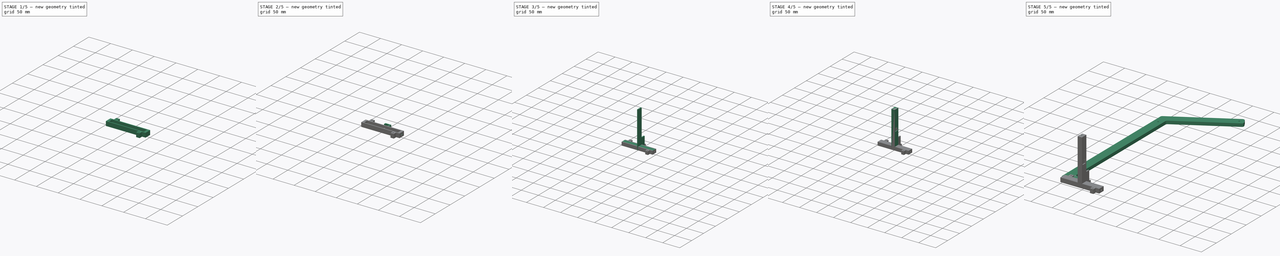
[diagram: build sequence overview — one tinted view per stage of 5, left to right]
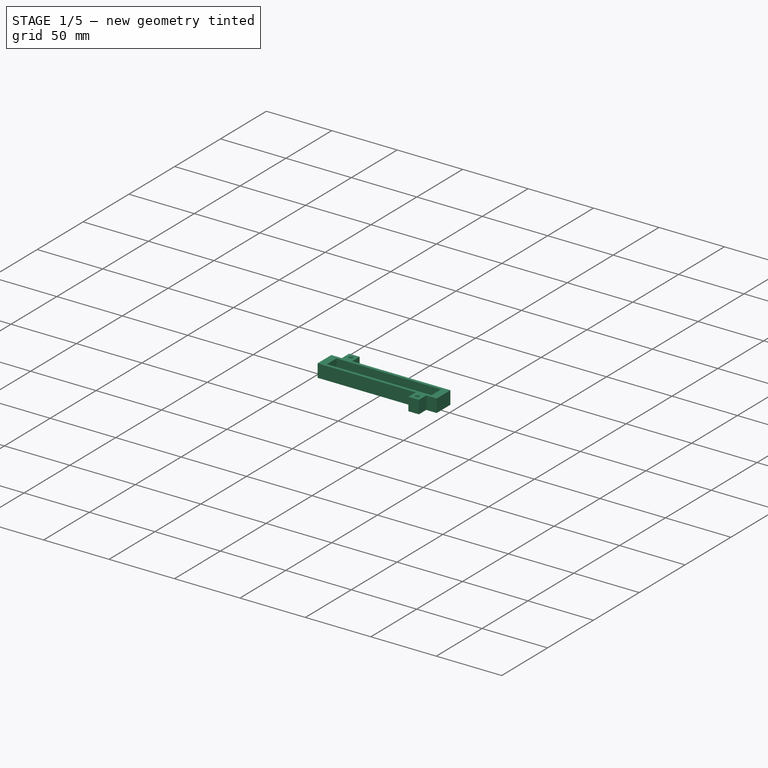
[diagram: stage 1 of 5 — iso view after this stage's code; geometry added in this stage tinted green]
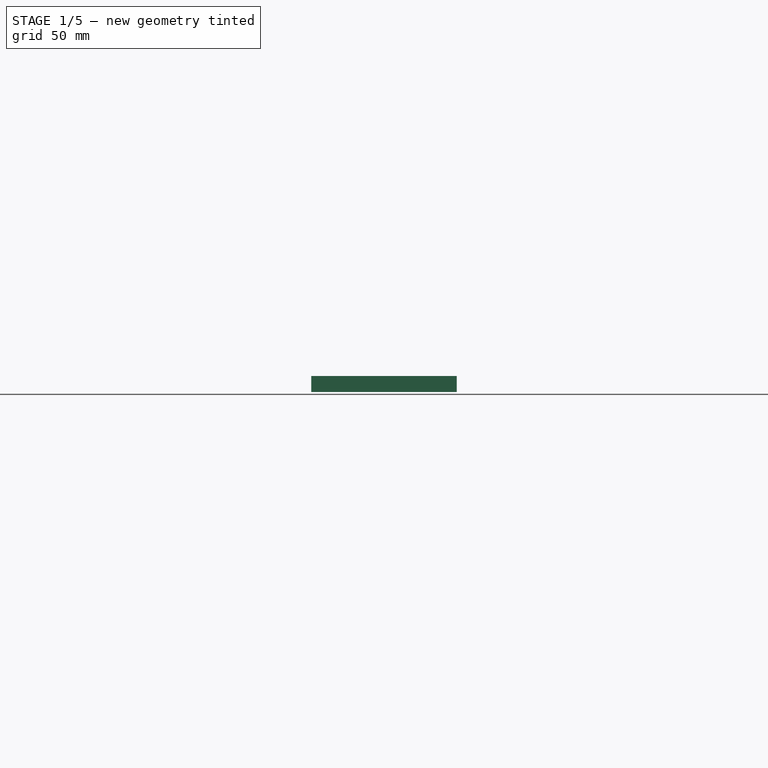
[diagram: stage 1 of 5 — front view after this stage's code; geometry added in this stage tinted green]
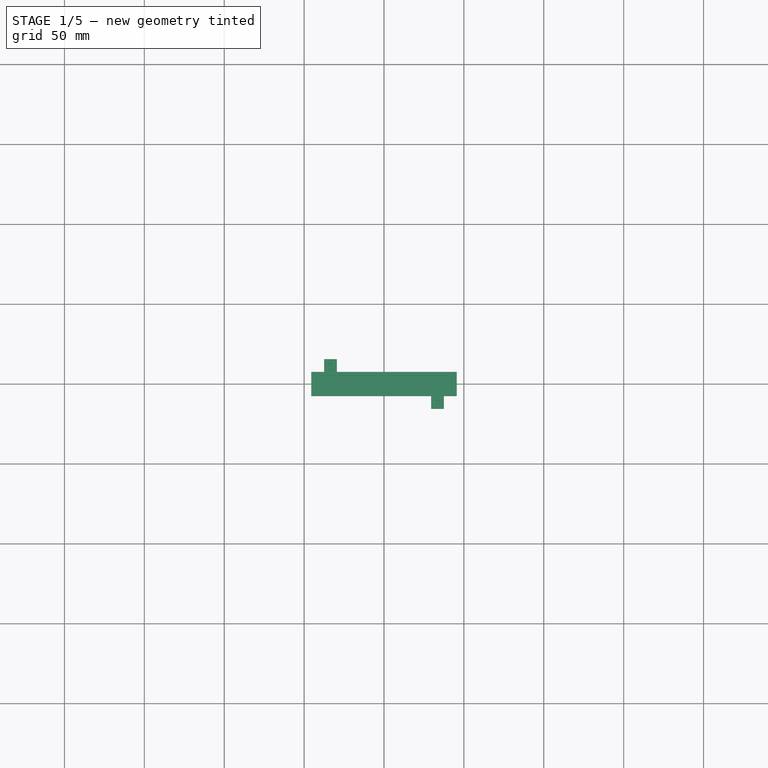
[diagram: stage 1 of 5 — top view after this stage's code; geometry added in this stage tinted green]
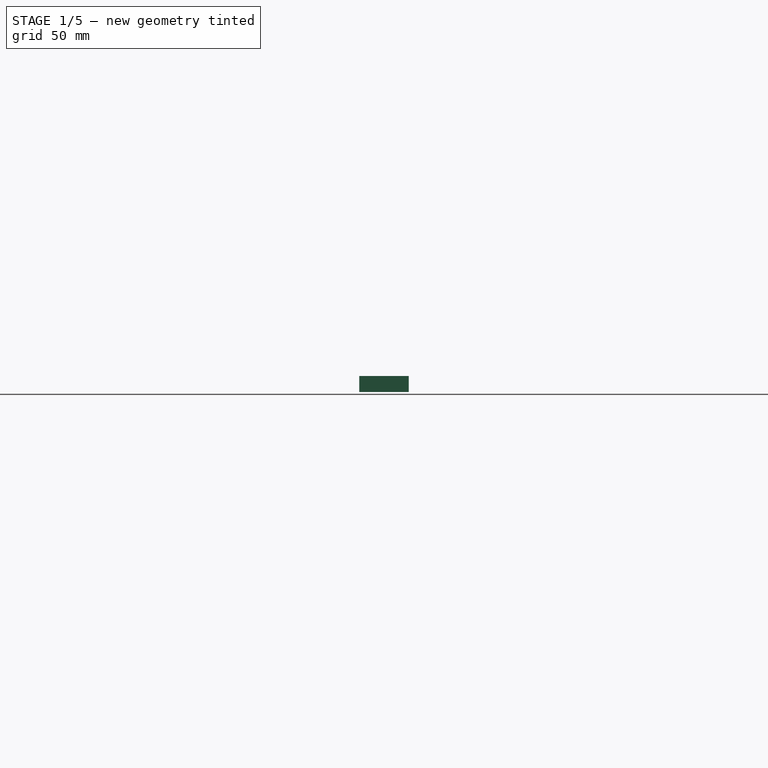
[diagram: stage 1 of 5 — right view after this stage's code; geometry added in this stage tinted green]
FCSTD DOCUMENT  (FreeCAD 0.21R33668 +26 (Git))
Label: cam_arm
License: All rights reserved
LicenseURL: https://en.wikipedia.org/wiki/All_rights_reserved
objects: Sketcher::SketchObject×22, PartDesign::Pocket×14, PartDesign::Pad×8, PartDesign::Body×7, App::Part×7, PartDesign::Fillet×1
note: 75 computed .brp shape members not serialized (recipe doc carries the construction recipe); baked Part::Feature solids carry a one-line shape summary decoded from their .brp

FEATURE [PartDesign::Body] Body005
  Group = -> [Sketch013,Pad005,Sketch014,Pad006]
  Origin = -> Origin010
  Tip = -> Pad006
FEATURE [App::Part] Part004  label="arm_proppers"
  Group = -> [Body005]
  Origin = -> Origin009
FEATURE [Sketcher::SketchObject] Sketch015
  FullyConstrained = true
  MapMode = 5
  Support = -> [XY_Plane012]
  sketch-geometry (12):
    g0: LineSegment StartX=45.5 StartY=7.5 StartZ=0 EndX=45.5 EndY=-7.5 EndZ=0
    g1: LineSegment StartX=45.5 StartY=-7.5 StartZ=0 EndX=37.5 EndY=-7.5 EndZ=0
    g2: LineSegment StartX=37.5 StartY=-7.5 StartZ=0 EndX=37.5 EndY=-15.5 EndZ=0
    g3: LineSegment StartX=37.5 StartY=-15.5 StartZ=0 EndX=29.5 EndY=-15.5 EndZ=0
    g4: LineSegment StartX=29.5 StartY=-15.5 StartZ=0 EndX=29.5 EndY=-7.5 EndZ=0
    g5: LineSegment StartX=29.5 StartY=-7.5 StartZ=0 EndX=-45.5 EndY=-7.5 EndZ=0
    g6: LineSegment StartX=-45.5 StartY=-7.5 StartZ=0 EndX=-45.5 EndY=7.5 EndZ=0
    g7: LineSegment StartX=-45.5 StartY=7.5 StartZ=0 EndX=-37.5 EndY=7.5 EndZ=0
    g8: LineSegment StartX=-37.5 StartY=7.5 StartZ=0 EndX=-37.5 EndY=15.5 EndZ=0
    g9: LineSegment StartX=-37.5 StartY=15.5 StartZ=0 EndX=-29.5 EndY=15.5 EndZ=0
    g10: LineSegment StartX=-29.5 StartY=15.5 StartZ=0 EndX=-29.5 EndY=7.5 EndZ=0
    g11: LineSegment StartX=-29.5 StartY=7.5 StartZ=0 EndX=45.5 EndY=7.5 EndZ=0
  constraints (35):
    c: Vertical(g0)
    c: Coincident(g0,g1)
    c: Horizontal(g1)
    c: Coincident(g1,g2)
    c: Vertical(g2)
    c: Coincident(g2,g3)
    c: Horizontal(g3)
    c: Coincident(g3,g4)
    c: Vertical(g4)
    c: Coincident(g4,g5)
    c: Horizontal(g5)
    c: Coincident(g5,g6)
    c: Vertical(g6)
    c: Coincident(g6,g7)
    c: Horizontal(g7)
    c: Coincident(g7,g8)
    c: Vertical(g8)
    c: Coincident(g8,g9)
    c: Horizontal(g9)
    c: Coincident(g9,g10)
    c: Vertical(g10)
    c: Coincident(g10,g11)
    c: Coincident(g11,g0)
    c: Horizontal(g11)
    c: DistanceX(g7,g7) = 8
    c: DistanceY(g0,g0) = 15
    c: Equal(g0,g6)
    c: DistanceY(g10,g10) = 8
    c: Equal(g10,g8)
    c: Equal(g10,g4)
    c: DistanceX(g9,g9) = 8
    c: DistanceX(g3,g3) = 8
    c: DistanceX(g5,g5) = 75
    c: DistanceX(g1,g1) = 8
    c: Symmetric(g0,g6,g-1)
FEATURE [PartDesign::Pad] Pad007
  Direction = (0,0,1)
  Length = 10
  Length2 = 10
  Profile = -> Sketch015
  ReferenceAxis = -> Sketch015 [N_Axis]
  Type = 0
FEATURE [Sketcher::SketchObject] Sketch016
  ExternalGeometry = -> [Pad007]
  FullyConstrained = true
  MapMode = 5
  Placement = pos=(0,0,10) rot=(0,0,1;0rad)
  Support = -> [Pad007]
  sketch-geometry (11):
    g0: Circle CenterX=-33.5 CenterY=11.5 CenterZ=0 NormalX=0 NormalY=0 NormalZ=1 AngleXU=0 Radius=1.5
    g1: Circle CenterX=33.5 CenterY=-11.5 CenterZ=0 NormalX=0 NormalY=0 NormalZ=1 AngleXU=0 Radius=1.5
    g2: LineSegment StartX=-33.5 StartY=11.5 StartZ=0 EndX=-29.5 EndY=11.5 EndZ=0
    g3: LineSegment StartX=-33.5 StartY=11.5 StartZ=0 EndX=-33.5 EndY=15.5 EndZ=0
    g4: LineSegment StartX=33.5 StartY=-11.5 StartZ=0 EndX=29.5 EndY=-11.5 EndZ=0
    g5: LineSegment StartX=33.5 StartY=-11.5 StartZ=0 EndX=33.5 EndY=-15.5 EndZ=0
    g6: LineSegment StartX=-40 StartY=-5.25 StartZ=0 EndX=-40 EndY=5.25 EndZ=0
    g7: LineSegment StartX=-40 StartY=5.25 StartZ=0 EndX=40 EndY=5.25 EndZ=0
    g8: LineSegment StartX=40 StartY=5.25 StartZ=0 EndX=40 EndY=-5.25 EndZ=0
    g9: LineSegment StartX=40 StartY=-5.25 StartZ=0 EndX=-40 EndY=-5.25 EndZ=0
    g10: GeomPoint X=0 Y=0 Z=0
  constraints (30):
    c: Diameter(g0) = 3
    c: Diameter(g1) = 3
    c: Coincident(g2,g0)
    c: PointOnObject(g2,g-4)
    c: Horizontal(g2)
    c: Coincident(g3,g0)
    c: PointOnObject(g3,g-3)
    c: Vertical(g3)
    c: Equal(g2,g3)
    c: DistanceY(g3,g3) = 4
    c: Coincident(g4,g1)
    c: PointOnObject(g4,g-5)
    c: Coincident(g5,g1)
    c: PointOnObject(g5,g-6)
    c: Vertical(g5)
    c: Horizontal(g4)
    c: Equal(g5,g4)
    c: DistanceX(g4,g4) = 4
    c: Coincident(g6,g7)
    c: Coincident(g7,g8)
    c: Coincident(g8,g9)
    c: Coincident(g9,g6)
    c: Horizontal(g7)
    c: Horizontal(g9)
    c: Vertical(g6)
    c: Vertical(g8)
    c: Symmetric(g7,g6,g10)
    c: Coincident(g10,g-1)
    c: DistanceX(g9,g9) = 80
    c: DistanceY(g8,g8) = 10.5
FEATURE [PartDesign::Pocket] Pocket008
  BaseFeature = -> Pad007
  Direction = (0,0,-1)
  Length = 7
  Length2 = 5
  Profile = -> Sketch016
  ReferenceAxis = -> Sketch016 [N_Axis]
  Type = 0
FEATURE [Sketcher::SketchObject] Sketch017
  FullyConstrained = true
  MapMode = 5
  Placement = pos=(0,0,3) rot=(0,0,1;0rad)
  Support = -> [Pocket008]
  sketch-geometry (5):
    g0: LineSegment StartX=-4.75 StartY=4.75 StartZ=0 EndX=-4.75 EndY=-4.75 EndZ=0
    g1: LineSegment StartX=-4.75 StartY=-4.75 StartZ=0 EndX=4.75 EndY=-4.75 EndZ=0
    g2: LineSegment StartX=4.75 StartY=-4.75 StartZ=0 EndX=4.75 EndY=4.75 EndZ=0
    g3: LineSegment StartX=4.75 StartY=4.75 StartZ=0 EndX=-4.75 EndY=4.75 EndZ=0
    g4: GeomPoint X=0 Y=0 Z=0
  constraints (12):
    c: Coincident(g0,g1)
    c: Coincident(g1,g2)
    c: Coincident(g2,g3)
    c: Coincident(g3,g0)
    c: Horizontal(g1)
    c: Horizontal(g3)
    c: Vertical(g0)
    c: Vertical(g2)
    c: Symmetric(g1,g0,g4)
    c: Coincident(g4,g-1)
    c: Equal(g2,g3)
    c: DistanceX(g3,g3) = 9.5
FEATURE [PartDesign::Pocket] Pocket009
  BaseFeature = -> Pocket008
  Direction = (0,0,-1)
  Length = 2
  Length2 = 5
  Profile = -> Sketch017
  ReferenceAxis = -> Sketch017 [N_Axis]
  Type = 0
FEATURE [PartDesign::Body] Body006
  Group = -> [Sketch015,Pad007,Sketch016,Pocket008,Sketch017,Pocket009,Sketch018,Pocket010,Sketch019,Pocket011,Sketch020,Pocket012]
  Origin = -> Origin012
  Tip = -> Pocket012
FEATURE [App::Part] Part005  label="cam_enclosure_front"
  Group = -> [Body006]
  Origin = -> Origin011
FEATURE [Sketcher::SketchObject] Sketch021
  FullyConstrained = true
  MapMode = 5
  Support = -> [XY_Plane014]
  sketch-geometry (12):
    g0: LineSegment StartX=45.5 StartY=7.5 StartZ=0 EndX=45.5 EndY=-7.5 EndZ=0
    g1: LineSegment StartX=45.5 StartY=-7.5 StartZ=0 EndX=37.5 EndY=-7.5 EndZ=0
    g2: LineSegment StartX=37.5 StartY=-7.5 StartZ=0 EndX=37.5 EndY=-15.5 EndZ=0
    g3: LineSegment StartX=37.5 StartY=-15.5 StartZ=0 EndX=29.5 EndY=-15.5 EndZ=0
    g4: LineSegment StartX=29.5 StartY=-15.5 StartZ=0 EndX=29.5 EndY=-7.5 EndZ=0
    g5: LineSegment StartX=29.5 StartY=-7.5 StartZ=0 EndX=-45.5 EndY=-7.5 EndZ=0
    g6: LineSegment StartX=-45.5 StartY=-7.5 StartZ=0 EndX=-45.5 EndY=7.5 EndZ=0
    g7: LineSegment StartX=-45.5 StartY=7.5 StartZ=0 EndX=-37.5 EndY=7.5 EndZ=0
    g8: LineSegment StartX=-37.5 StartY=7.5 StartZ=0 EndX=-37.5 EndY=15.5 EndZ=0
    g9: LineSegment StartX=-37.5 StartY=15.5 StartZ=0 EndX=-29.5 EndY=15.5 EndZ=0
    g10: LineSegment StartX=-29.5 StartY=15.5 StartZ=0 EndX=-29.5 EndY=7.5 EndZ=0
    g11: LineSegment StartX=-29.5 StartY=7.5 StartZ=0 EndX=45.5 EndY=7.5 EndZ=0
  constraints (35):
    c: Vertical(g0)
    c: Coincident(g0,g1)
    c: Horizontal(g1)
    c: Coincident(g1,g2)
    c: Vertical(g2)
    c: Coincident(g2,g3)
    c: Horizontal(g3)
    c: Coincident(g3,g4)
    c: Vertical(g4)
    c: Coincident(g4,g5)
    c: Horizontal(g5)
    c: Coincident(g5,g6)
    c: Vertical(g6)
    c: Coincident(g6,g7)
    c: Horizontal(g7)
    c: Coincident(g7,g8)
    c: Vertical(g8)
    c: Coincident(g8,g9)
    c: Horizontal(g9)
    c: Coincident(g9,g10)
    c: Vertical(g10)
    c: Coincident(g10,g11)
    c: Coincident(g11,g0)
    c: Horizontal(g11)
    c: DistanceX(g7,g7) = 8
    c: DistanceX(g9,g9) = 8
    c: DistanceX(g3,g3) = 8
    c: DistanceX(g1,g1) = 8
    c: DistanceY(g10,g10) = 8
    c: DistanceY(g2,g2) = 8
    c: DistanceY(g0,g0) = 15
    c: Equal(g0,g6)
    c: Equal(g10,g8)
    c: DistanceX(g5,g5) = 75
    c: Symmetric(g0,g6,g-1)
FEATURE [PartDesign::Pad] Pad008
  Direction = (0,0,1)
  Length = 3
  Length2 = 10
  Profile = -> Sketch021
  ReferenceAxis = -> Sketch021 [N_Axis]
  Type = 0
FEATURE [Sketcher::SketchObject] Sketch022
  ExternalGeometry = -> [Pad008]
  FullyConstrained = true
  MapMode = 5
  Placement = pos=(0,0,3) rot=(0,0,1;0rad)
  Support = -> [Pad008]
  sketch-geometry (26):
    g0: Circle CenterX=-33.5 CenterY=11.5 CenterZ=0 NormalX=0 NormalY=0 NormalZ=1 AngleXU=0 Radius=1.65
    g1: Circle CenterX=33.5 CenterY=-11.5 CenterZ=0 NormalX=0 NormalY=0 NormalZ=1 AngleXU=0 Radius=1.65
    g2: LineSegment StartX=-33.5 StartY=11.5 StartZ=0 EndX=-29.5 EndY=11.5 EndZ=0
    g3: LineSegment StartX=-33.5 StartY=15.5 StartZ=0 EndX=-33.5 EndY=11.5 EndZ=0
    g4: LineSegment StartX=33.5 StartY=-11.5 StartZ=0 EndX=33.5 EndY=-15.5 EndZ=0
    g5: LineSegment StartX=33.5 StartY=-11.5 StartZ=0 EndX=37.5 EndY=-11.5 EndZ=0
    g6: LineSegment StartX=-30.5 StartY=4.5 StartZ=0 EndX=-30.5 EndY=2.5 EndZ=0
    g7: LineSegment StartX=-30.5 StartY=2.5 StartZ=0 EndX=-5.5 EndY=2.5 EndZ=0
    g8: LineSegment StartX=-5.5 StartY=2.5 StartZ=0 EndX=-5.5 EndY=4.5 EndZ=0
    g9: LineSegment StartX=-5.5 StartY=4.5 StartZ=0 EndX=-30.5 EndY=4.5 EndZ=0
    g10: GeomPoint X=-18 Y=3.5 Z=0
    g11: LineSegment StartX=-30.5 StartY=-2.5 StartZ=0 EndX=-30.5 EndY=-4.5 EndZ=0
    g12: LineSegment StartX=-30.5 StartY=-4.5 StartZ=0 EndX=-5.5 EndY=-4.5 EndZ=0
    g13: LineSegment StartX=-5.5 StartY=-4.5 StartZ=0 EndX=-5.5 EndY=-2.5 EndZ=0
    g14: LineSegment StartX=-5.5 StartY=-2.5 StartZ=0 EndX=-30.5 EndY=-2.5 EndZ=0
    g15: GeomPoint X=-18 Y=-3.5 Z=0
    g16: LineSegment StartX=5.5 StartY=-2.5 StartZ=0 EndX=5.5 EndY=-4.5 EndZ=0
    g17: LineSegment StartX=5.5 StartY=-4.5 StartZ=0 EndX=30.5 EndY=-4.5 EndZ=0
    g18: LineSegment StartX=30.5 StartY=-4.5 StartZ=0 EndX=30.5 EndY=-2.5 EndZ=0
    g19: LineSegment StartX=30.5 StartY=-2.5 StartZ=0 EndX=5.5 EndY=-2.5 EndZ=0
    g20: GeomPoint X=18 Y=-3.5 Z=0
    g21: LineSegment StartX=5.5 StartY=4.5 StartZ=0 EndX=5.5 EndY=2.5 EndZ=0
    g22: LineSegment StartX=5.5 StartY=2.5 StartZ=0 EndX=30.5 EndY=2.5 EndZ=0
    g23: LineSegment StartX=30.5 StartY=2.5 StartZ=0 EndX=30.5 EndY=4.5 EndZ=0
    g24: LineSegment StartX=30.5 StartY=4.5 StartZ=0 EndX=5.5 EndY=4.5 EndZ=0
    g25: GeomPoint X=18 Y=3.5 Z=0
  constraints (70):
    c: Diameter(g1) = 3.3
    c: Diameter(g0) = 3.3
    c: Coincident(g2,g0)
    c: PointOnObject(g2,g-3)
    c: Horizontal(g2)
    c: PointOnObject(g3,g-4)
    c: Coincident(g3,g0)
    c: Coincident(g4,g1)
    c: PointOnObject(g4,g-5)
    c: Coincident(g5,g1)
    c: PointOnObject(g5,g-6)
    c: Horizontal(g5)
    c: Vertical(g4)
    c: Vertical(g3)
    c: Equal(g3,g2)
    c: Equal(g5,g4)
    c: DistanceX(g5,g5) = 4
    c: DistanceX(g2,g2) = 4
    c: Coincident(g6,g7)
    c: Coincident(g7,g8)
    c: Coincident(g8,g9)
    c: Coincident(g9,g6)
    c: Horizontal(g7)
    c: Horizontal(g9)
    c: Vertical(g6)
    c: Vertical(g8)
    c: Symmetric(g7,g6,g10)
    c: Coincident(g11,g12)
    c: Coincident(g12,g13)
    c: Coincident(g13,g14)
    c: Coincident(g14,g11)
    c: Horizontal(g12)
    c: Horizontal(g14)
    c: Vertical(g11)
    c: Vertical(g13)
    c: Symmetric(g12,g11,g15)
    c: Coincident(g16,g17)
    c: Coincident(g17,g18)
    c: Coincident(g18,g19)
    c: Coincident(g19,g16)
    c: Horizontal(g17)
    c: Horizontal(g19)
    c: Vertical(g16)
    c: Vertical(g18)
    c: Symmetric(g17,g16,g20)
    c: Coincident(g21,g22)
    c: Coincident(g22,g23)
    c: Coincident(g23,g24)
    c: Coincident(g24,g21)
    c: Horizontal(g22)
    c: Horizontal(g24)
    c: Vertical(g21)
    c: Vertical(g23)
    c: Symmetric(g22,g21,g25)
    c: DistanceX(g10,g-1) = 18
    c: DistanceX(g15,g-1) = 18
    c: DistanceX(g-1,g25) = 18
    c: DistanceX(g-1,g20) = 18
    c: DistanceX(g7,g7) = 25
    c: DistanceX(g12,g12) = 25
    c: DistanceX(g17,g17) = 25
    c: DistanceX(g22,g22) = 25
    c: DistanceY(g23,g23) = 2
    c: DistanceY(g18,g18) = 2
    c: DistanceY(g13,g13) = 2
    c: DistanceY(g8,g8) = 2
    c: DistanceY(g-1,g7) = 2.5
    c: DistanceY(g13,g-1) = 2.5
    c: DistanceY(g16,g-1) = 2.5
    c: DistanceY(g-1,g21) = 2.5
FEATURE [PartDesign::Pocket] Pocket013
  BaseFeature = -> Pad008
  Direction = (0,0,-1)
  Length = 5
  Length2 = 5
  Profile = -> Sketch022
  ReferenceAxis = -> Sketch022 [N_Axis]
  Type = 0
FEATURE [PartDesign::Body] Body007
  Group = -> [Sketch021,Pad008,Sketch022,Pocket013]
  Origin = -> Origin014
  Tip = -> Pocket013
FEATURE [App::Part] Part006  label="cam_enclosure_back"
  Group = -> [Body007]
  Origin = -> Origin013
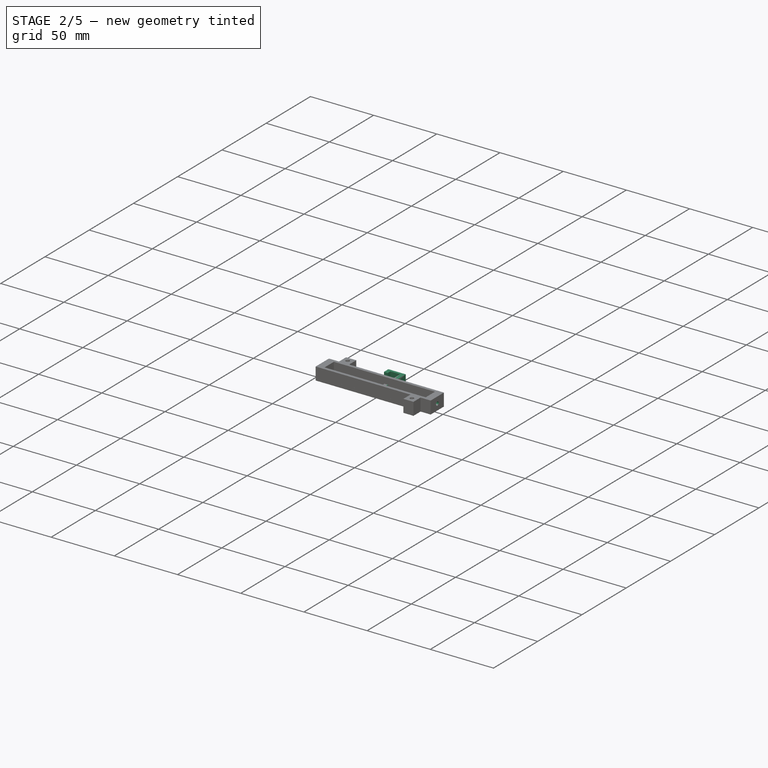
[diagram: stage 2 of 5 — iso view after this stage's code; geometry added in this stage tinted green]
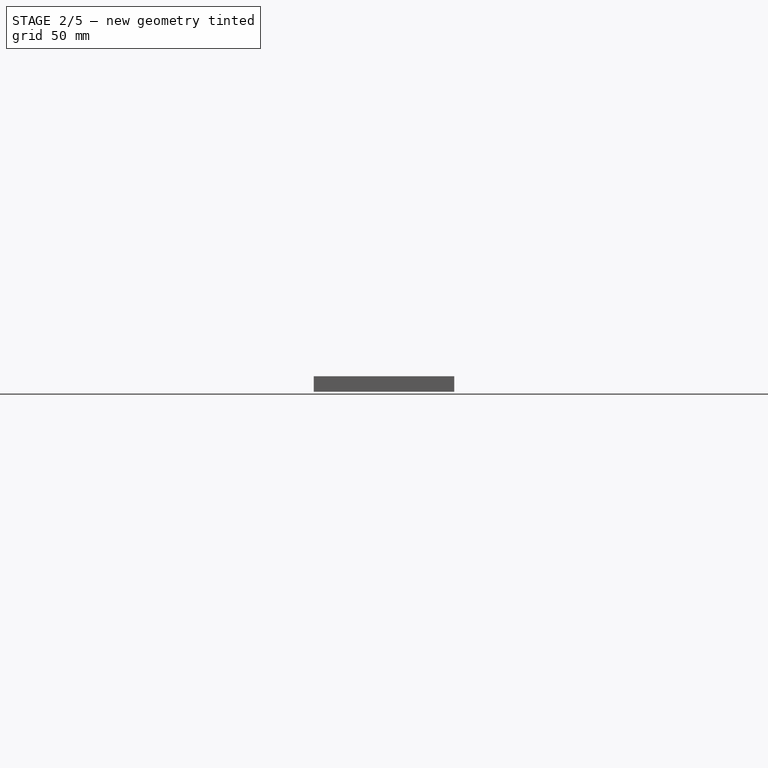
[diagram: stage 2 of 5 — front view after this stage's code; geometry added in this stage tinted green]
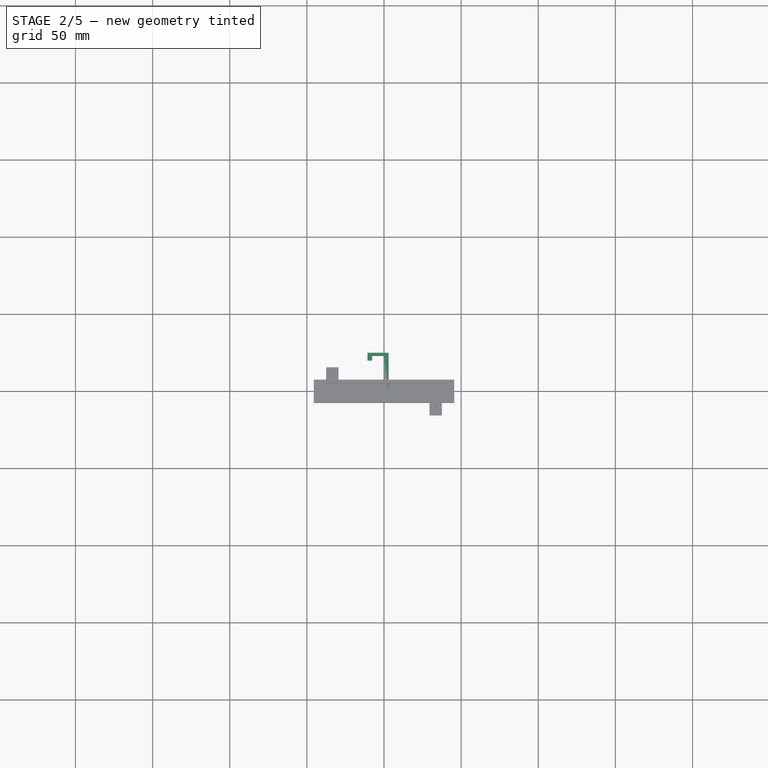
[diagram: stage 2 of 5 — top view after this stage's code; geometry added in this stage tinted green]
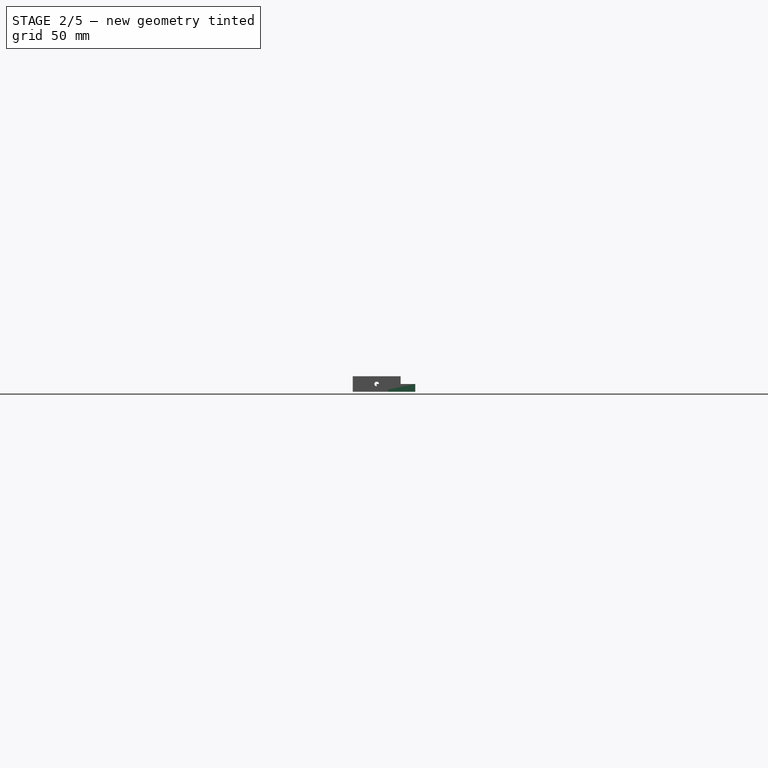
[diagram: stage 2 of 5 — right view after this stage's code; geometry added in this stage tinted green]
FEATURE [PartDesign::Body] Body004
  Group = -> [Sketch010,Pad004,Sketch011,Pocket006,Sketch012,Pocket007]
  Origin = -> Origin008
  Tip = -> Pocket007
FEATURE [App::Part] Part001  label="brace"
  Group = -> [Body004]
  Origin = -> Origin002
FEATURE [Sketcher::SketchObject] Sketch013
  FullyConstrained = true
  MapMode = 5
  Support = -> [XY_Plane010]
  sketch-geometry (8):
    g0: LineSegment StartX=-10.7 StartY=20 StartZ=0 EndX=-10.7 EndY=25 EndZ=0
    g1: LineSegment StartX=-10.7 StartY=25 StartZ=0 EndX=3 EndY=25 EndZ=0
    g2: LineSegment StartX=3 StartY=25 StartZ=0 EndX=3 EndY=0 EndZ=0
    g3: LineSegment StartX=3 StartY=0 StartZ=0 EndX=0 EndY=0 EndZ=0
    g4: LineSegment StartX=0 StartY=0 StartZ=0 EndX=0 EndY=23 EndZ=0
    g5: LineSegment StartX=0 StartY=23 StartZ=0 EndX=-7.7 EndY=23 EndZ=0
    g6: LineSegment StartX=-7.7 StartY=23 StartZ=0 EndX=-7.7 EndY=20 EndZ=0
    g7: LineSegment StartX=-7.7 StartY=20 StartZ=0 EndX=-10.7 EndY=20 EndZ=0
  constraints (23):
    c: Vertical(g0)
    c: Coincident(g0,g1)
    c: Horizontal(g1)
    c: Coincident(g1,g2)
    c: Vertical(g2)
    c: Coincident(g2,g3)
    c: Horizontal(g3)
    c: Coincident(g3,g4)
    c: Vertical(g4)
    c: Coincident(g4,g5)
    c: Horizontal(g5)
    c: Coincident(g5,g6)
    c: Coincident(g6,g7)
    c: Coincident(g7,g0)
    c: Horizontal(g7)
    c: DistanceX(g5,g5) = 7.7
    c: Vertical(g6)
    c: DistanceX(g3,g3) = 3
    c: DistanceX(g7,g7) = 3
    c: DistanceY(g2,g2) = 25
    c: Coincident(g3,g-1)
    c: DistanceY(g0,g0) = 5
    c: DistanceY(g6,g6) = 3
FEATURE [PartDesign::Pad] Pad005
  Direction = (0,0,1)
  Length = 5
  Length2 = 10
  Profile = -> Sketch013
  ReferenceAxis = -> Sketch013 [N_Axis]
  Type = 0
FEATURE [Sketcher::SketchObject] Sketch018
  FullyConstrained = true
  MapMode = 5
  Placement = pos=(0,0,1) rot=(0,0,1;0rad)
  Support = -> [Pocket009]
  sketch-geometry (5):
    g0: LineSegment StartX=-3 StartY=3 StartZ=0 EndX=-3 EndY=-3 EndZ=0
    g1: LineSegment StartX=-3 StartY=-3 StartZ=0 EndX=3 EndY=-3 EndZ=0
    g2: LineSegment StartX=3 StartY=-3 StartZ=0 EndX=3 EndY=3 EndZ=0
    g3: LineSegment StartX=3 StartY=3 StartZ=0 EndX=-3 EndY=3 EndZ=0
    g4: GeomPoint X=1e-16 Y=0 Z=0
  constraints (12):
    c: Coincident(g0,g1)
    c: Coincident(g1,g2)
    c: Coincident(g2,g3)
    c: Coincident(g3,g0)
    c: Horizontal(g1)
    c: Horizontal(g3)
    c: Vertical(g0)
    c: Vertical(g2)
    c: Symmetric(g1,g0,g4)
    c: Coincident(g4,g-1)
    c: Equal(g2,g3)
    c: DistanceX(g3,g3) = 6
FEATURE [PartDesign::Pocket] Pocket010
  BaseFeature = -> Pocket009
  Direction = (0,0,-1)
  Length = 5
  Length2 = 5
  Profile = -> Sketch018
  ReferenceAxis = -> Sketch018 [N_Axis]
  Type = 0
FEATURE [Sketcher::SketchObject] Sketch019
  FullyConstrained = true
  MapMode = 5
  Placement = pos=(45.5,0,0) rot=(0.57735,0.57735,0.57735;2.0944rad)
  Support = -> [Pocket010]
  sketch-geometry (1):
    g0: Circle CenterX=0 CenterY=5 CenterZ=0 NormalX=0 NormalY=0 NormalZ=1 AngleXU=0 Radius=1.5
  constraints (3):
    c: PointOnObject(g0,g-2)
    c: Diameter(g0) = 3
    c: DistanceY(g-1,g0) = 5
FEATURE [PartDesign::Pocket] Pocket011
  BaseFeature = -> Pocket010
  Direction = (-1,0,0)
  Length = 6
  Length2 = 5
  Profile = -> Sketch019
  ReferenceAxis = -> Sketch019 [N_Axis]
  Type = 0
FEATURE [Sketcher::SketchObject] Sketch020
  FullyConstrained = true
  MapMode = 5
  Placement = pos=(-45.5,0,0) rot=(0.57735,-0.57735,-0.57735;2.0944rad)
  Support = -> [Pocket011]
  sketch-geometry (1):
    g0: Circle CenterX=0 CenterY=5 CenterZ=0 NormalX=0 NormalY=0 NormalZ=1 AngleXU=0 Radius=1.5
  constraints (3):
    c: PointOnObject(g0,g-2)
    c: Diameter(g0) = 3
    c: DistanceY(g-1,g0) = 5
FEATURE [PartDesign::Pocket] Pocket012
  BaseFeature = -> Pocket011
  Direction = (1,0,0)
  Length = 6
  Length2 = 5
  Profile = -> Sketch020
  ReferenceAxis = -> Sketch020 [N_Axis]
  Type = 0
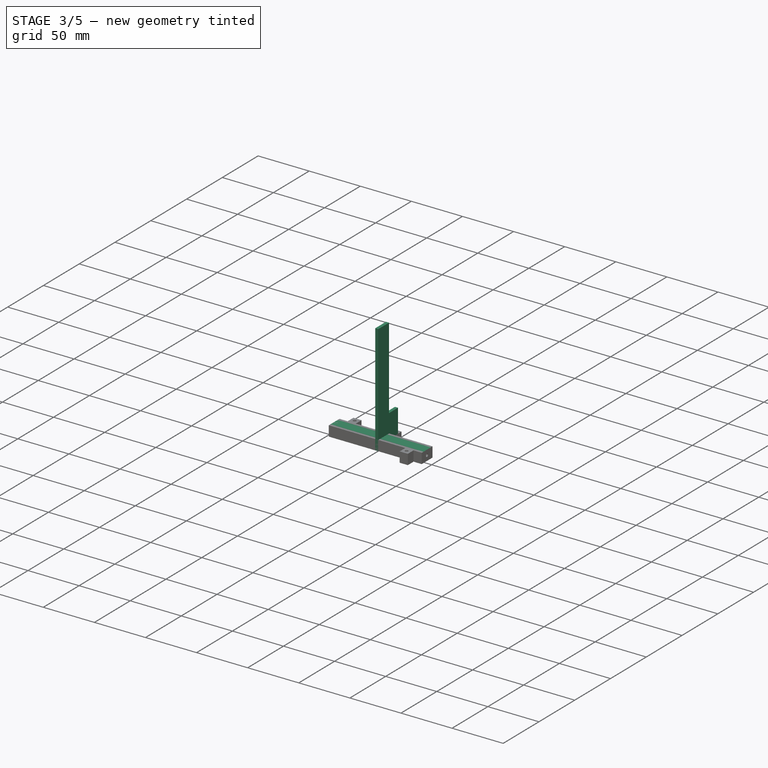
[diagram: stage 3 of 5 — iso view after this stage's code; geometry added in this stage tinted green]
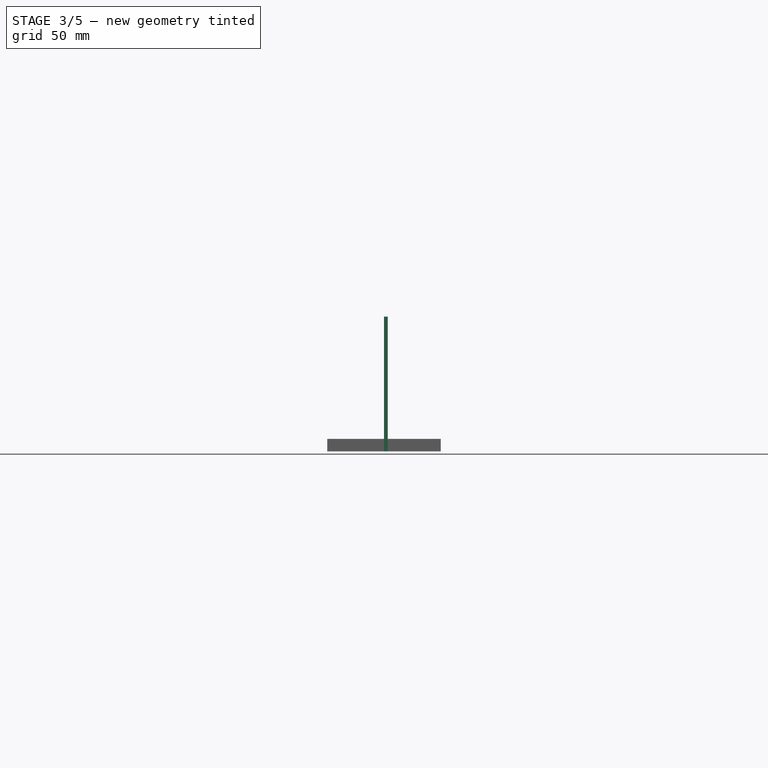
[diagram: stage 3 of 5 — front view after this stage's code; geometry added in this stage tinted green]
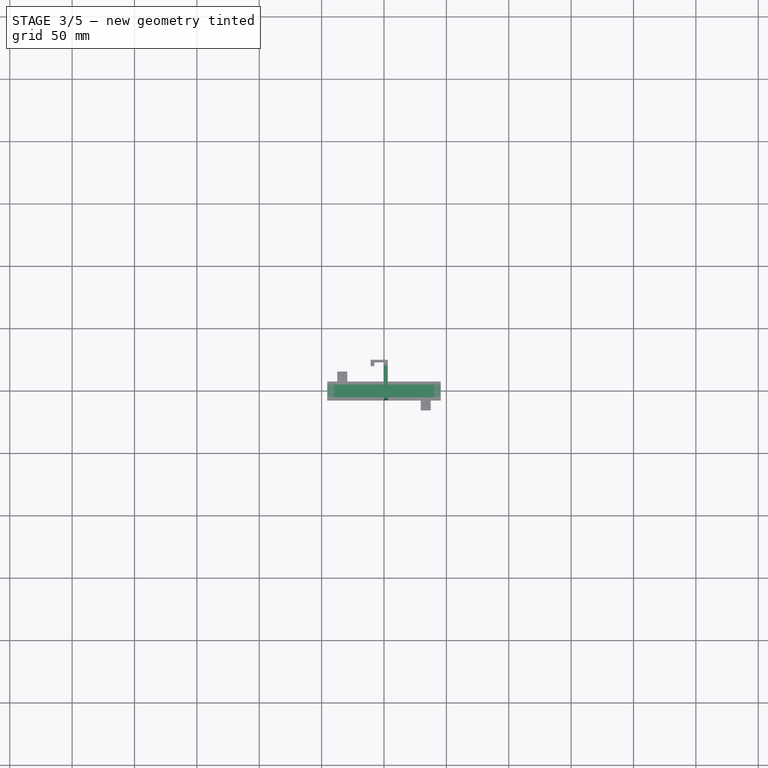
[diagram: stage 3 of 5 — top view after this stage's code; geometry added in this stage tinted green]
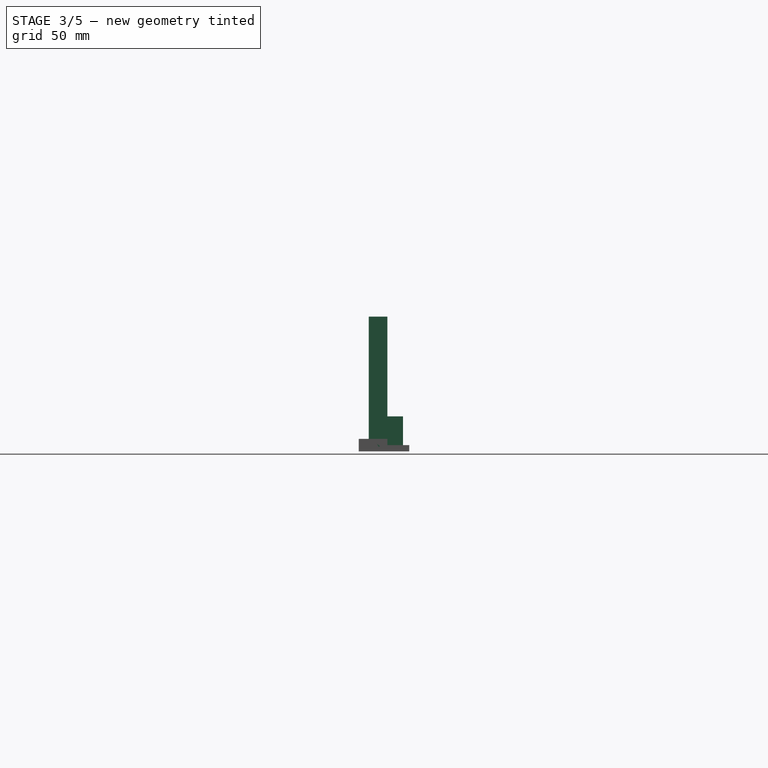
[diagram: stage 3 of 5 — right view after this stage's code; geometry added in this stage tinted green]
FEATURE [PartDesign::Body] Body002
  Group = -> [Sketch003,Pad002,Sketch004,Pocket001,Sketch005,Pocket002,Sketch006,Pocket003,Sketch007,Pocket004]
  Origin = -> Origin005
  Tip = -> Pocket004
FEATURE [App::Part] Part002  label="cam_enclosure_front_old"
  Group = -> [Body002]
  Origin = -> Origin004
FEATURE [Sketcher::SketchObject] Sketch008
  FullyConstrained = true
  MapMode = 5
  Placement = pos=(0,0,0) rot=(0.57735,0.57735,0.57735;2.0944rad)
  Support = -> [YZ_Plane007]
  sketch-geometry (5):
    g0: LineSegment StartX=-7.5 StartY=108 StartZ=0 EndX=-7.5 EndY=0 EndZ=0
    g1: LineSegment StartX=-7.5 StartY=-3e-15 StartZ=0 EndX=7.5 EndY=-3e-15 EndZ=0
    g2: LineSegment StartX=7.5 StartY=-3e-15 StartZ=0 EndX=7.5 EndY=108 EndZ=0
    g3: LineSegment StartX=7.5 StartY=108 StartZ=0 EndX=-7.5 EndY=108 EndZ=0
    g4: GeomPoint X=0 Y=54 Z=0
  constraints (13):
    c: Coincident(g0,g1)
    c: Coincident(g1,g2)
    c: Coincident(g2,g3)
    c: Coincident(g3,g0)
    c: Horizontal(g1)
    c: Horizontal(g3)
    c: Vertical(g0)
    c: Vertical(g2)
    c: Symmetric(g1,g0,g4)
    c: PointOnObject(g4,g-2)
    c: DistanceY(g2,g2) = 108
    c: DistanceX(g3,g3) = 15
    c: DistanceY(g-1,g4) = 54
FEATURE [PartDesign::Pad] Pad003
  Direction = (1,-2e-16,3e-16)
  Length = 3
  Length2 = 10
  Placement = pos=(0,0,0) rot=(0.57735,0.57735,0.57735;2.0944rad)
  Profile = -> Sketch008
  ReferenceAxis = -> Sketch008 [N_Axis]
  Type = 0
FEATURE [PartDesign::Body] Body003
  Group = -> [Sketch008,Pad003,Sketch009,Pocket005]
  Origin = -> Origin007
  Tip = -> Pocket005
FEATURE [App::Part] Part003  label="cam_enclosure_back_old"
  Group = -> [Body003]
  Origin = -> Origin006
FEATURE [Sketcher::SketchObject] Sketch010
  FullyConstrained = true
  MapMode = 5
  Support = -> [XY_Plane008]
  sketch-geometry (5):
    g0: LineSegment StartX=-45.5 StartY=5 StartZ=0 EndX=-45.5 EndY=-5 EndZ=0
    g1: LineSegment StartX=-45.5 StartY=-5 StartZ=0 EndX=45.5 EndY=-5 EndZ=0
    g2: LineSegment StartX=45.5 StartY=-5 StartZ=0 EndX=45.5 EndY=5 EndZ=0
    g3: LineSegment StartX=45.5 StartY=5 StartZ=0 EndX=-45.5 EndY=5 EndZ=0
    g4: GeomPoint X=0 Y=0 Z=0
  constraints (12):
    c: Coincident(g0,g1)
    c: Coincident(g1,g2)
    c: Coincident(g2,g3)
    c: Coincident(g3,g0)
    c: Horizontal(g1)
    c: Horizontal(g3)
    c: Vertical(g0)
    c: Vertical(g2)
    c: Symmetric(g1,g0,g4)
    c: Coincident(g4,g-1)
    c: DistanceX(g1,g1) = 91
    c: DistanceY(g2,g2) = 10
FEATURE [PartDesign::Pad] Pad004
  Direction = (0,0,1)
  Length = 10
  Length2 = 10
  Profile = -> Sketch010
  ReferenceAxis = -> Sketch010 [N_Axis]
  Type = 0
FEATURE [Sketcher::SketchObject] Sketch011
  ExternalGeometry = -> [Pad004]
  FullyConstrained = true
  MapMode = 5
  Placement = pos=(-45.5,0,0) rot=(0.57735,-0.57735,-0.57735;2.0944rad)
  Support = -> [Pad004]
  sketch-geometry (3):
    g0: Circle CenterX=0 CenterY=5 CenterZ=0 NormalX=0 NormalY=0 NormalZ=1 AngleXU=0 Radius=1.5
    g1: LineSegment StartX=0 StartY=5 StartZ=0 EndX=0 EndY=10 EndZ=0
    g2: LineSegment StartX=0 StartY=5 StartZ=0 EndX=5 EndY=5 EndZ=0
  constraints (9):
    c: PointOnObject(g0,g-2)
    c: Diameter(g0) = 3
    c: Coincident(g1,g0)
    c: PointOnObject(g1,g-4)
    c: Vertical(g1)
    c: Coincident(g2,g0)
    c: PointOnObject(g2,g-3)
    c: Horizontal(g2)
    c: Equal(g1,g2)
FEATURE [PartDesign::Pocket] Pocket006
  BaseFeature = -> Pad004
  Direction = (1,0,0)
  Length = 5
  Length2 = 5
  Profile = -> Sketch011
  ReferenceAxis = -> Sketch011 [N_Axis]
  Type = 0
FEATURE [Sketcher::SketchObject] Sketch012
  ExternalGeometry = -> [Pocket006]
  FullyConstrained = true
  MapMode = 5
  Placement = pos=(45.5,0,0) rot=(0.57735,0.57735,0.57735;2.0944rad)
  Support = -> [Pocket006]
  sketch-geometry (3):
    g0: Circle CenterX=0 CenterY=5 CenterZ=0 NormalX=0 NormalY=0 NormalZ=1 AngleXU=0 Radius=1.5
    g1: LineSegment StartX=0 StartY=5 StartZ=0 EndX=0 EndY=10 EndZ=0
    g2: LineSegment StartX=0 StartY=5 StartZ=0 EndX=5 EndY=5 EndZ=0
  constraints (9):
    c: PointOnObject(g0,g-2)
    c: Diameter(g0) = 3
    c: Coincident(g1,g0)
    c: PointOnObject(g1,g-3)
    c: Vertical(g1)
    c: Coincident(g2,g0)
    c: PointOnObject(g2,g-4)
    c: Horizontal(g2)
    c: Equal(g1,g2)
FEATURE [PartDesign::Pocket] Pocket007
  BaseFeature = -> Pocket006
  Direction = (-1,0,0)
  Length = 5
  Length2 = 5
  Profile = -> Sketch012
  ReferenceAxis = -> Sketch012 [N_Axis]
  Type = 0
FEATURE [Sketcher::SketchObject] Sketch014
  FullyConstrained = true
  MapMode = 5
  Placement = pos=(0,0,5) rot=(0,0,1;0rad)
  Support = -> [Pad005]
  sketch-geometry (4):
    g0: LineSegment StartX=0 StartY=0 StartZ=0 EndX=0 EndY=20 EndZ=0
    g1: LineSegment StartX=0 StartY=20 StartZ=0 EndX=3 EndY=20 EndZ=0
    g2: LineSegment StartX=3 StartY=20 StartZ=0 EndX=3 EndY=1.96856e-11 EndZ=0
    g3: LineSegment StartX=3 StartY=1.96856e-11 StartZ=0 EndX=0 EndY=0 EndZ=0
  constraints (11):
    c: Vertical(g0)
    c: Coincident(g1,g0)
    c: Horizontal(g1)
    c: Coincident(g2,g1)
    c: Vertical(g2)
    c: Coincident(g3,g0)
    c: Coincident(g0,g-1)
    c: DistanceY(g0,g0) = 20
    c: Equal(g2,g0)
    c: Coincident(g3,g2)
    c: DistanceX(g1,g1) = 3
FEATURE [PartDesign::Pad] Pad006
  BaseFeature = -> Pad005
  Direction = (0,0,1)
  Length = 23
  Length2 = 10
  Profile = -> Sketch014
  ReferenceAxis = -> Sketch014 [N_Axis]
  Type = 0
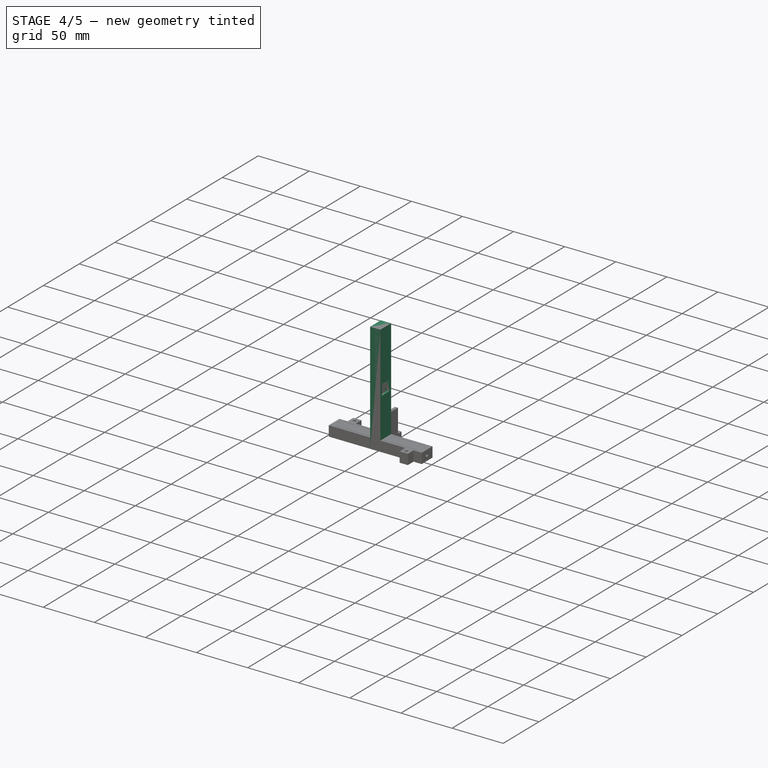
[diagram: stage 4 of 5 — iso view after this stage's code; geometry added in this stage tinted green]
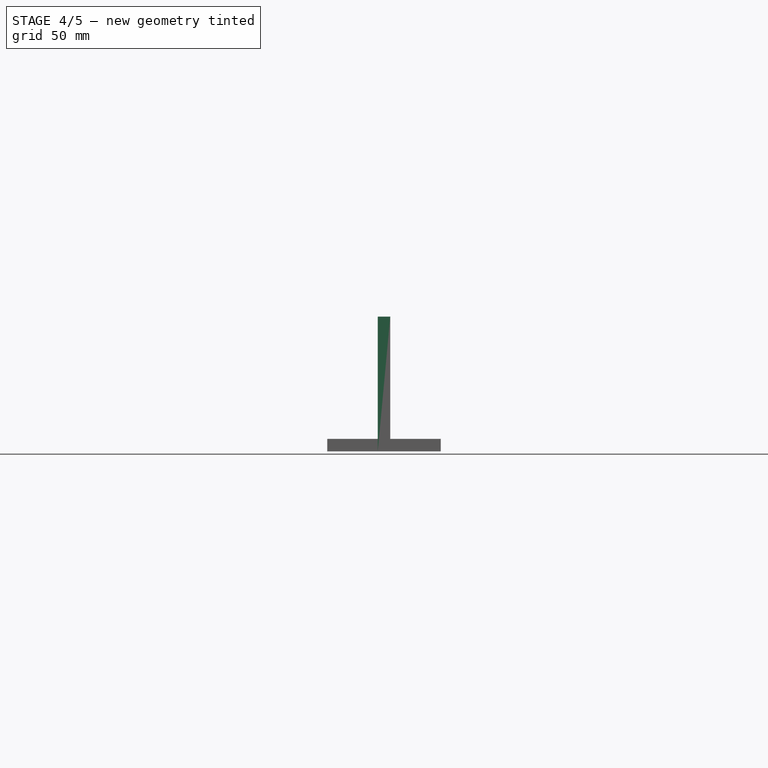
[diagram: stage 4 of 5 — front view after this stage's code; geometry added in this stage tinted green]
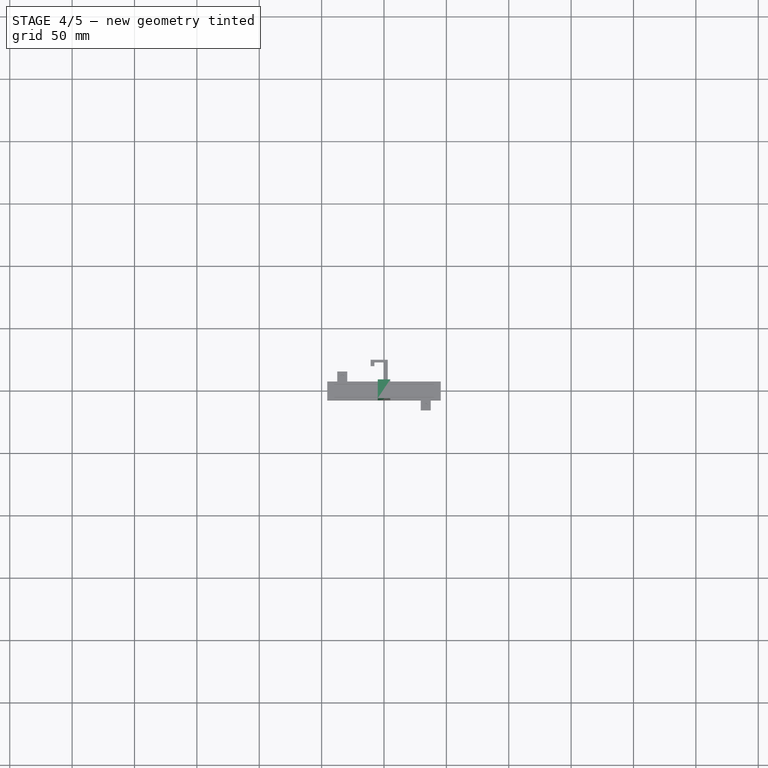
[diagram: stage 4 of 5 — top view after this stage's code; geometry added in this stage tinted green]
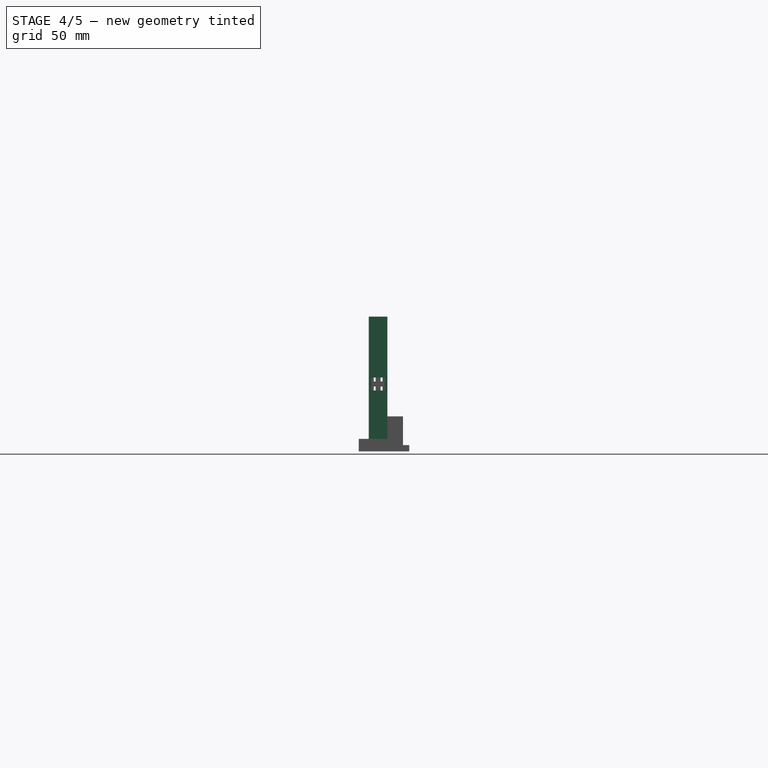
[diagram: stage 4 of 5 — right view after this stage's code; geometry added in this stage tinted green]
FEATURE [PartDesign::Body] Body
  Group = -> [Sketch,Pad,Fillet,Sketch001,Pocket]
  Origin = -> Origin001
  Tip = -> Pocket
FEATURE [App::Part] Part  label="arm"
  Group = -> [Body]
  Origin = -> Origin
FEATURE [Sketcher::SketchObject] Sketch003
  FullyConstrained = true
  MapMode = 5
  Support = -> [XY_Plane005]
  sketch-geometry (5):
    g0: LineSegment StartX=-5 StartY=-7.5 StartZ=0 EndX=-5 EndY=7.5 EndZ=0
    g1: LineSegment StartX=-5 StartY=7.5 StartZ=0 EndX=5 EndY=7.5 EndZ=0
    g2: LineSegment StartX=5 StartY=7.5 StartZ=0 EndX=5 EndY=-7.5 EndZ=0
    g3: LineSegment StartX=5 StartY=-7.5 StartZ=0 EndX=-5 EndY=-7.5 EndZ=0
    g4: GeomPoint X=0 Y=0 Z=0
  constraints (12):
    c: Coincident(g0,g1)
    c: Coincident(g1,g2)
    c: Coincident(g2,g3)
    c: Coincident(g3,g0)
    c: Horizontal(g1)
    c: Horizontal(g3)
    c: Vertical(g0)
    c: Vertical(g2)
    c: Symmetric(g1,g0,g4)
    c: Coincident(g4,g-1)
    c: DistanceX(g3,g3) = 10
    c: DistanceY(g2,g2) = 15
FEATURE [PartDesign::Pad] Pad002
  Direction = (0,0,1)
  Length = 91
  Length2 = 10
  Profile = -> Sketch003
  ReferenceAxis = -> Sketch003 [N_Axis]
  Type = 0
FEATURE [Sketcher::SketchObject] Sketch004
  FullyConstrained = true
  MapMode = 5
  Placement = pos=(-5,0,0) rot=(0.57735,-0.57735,-0.57735;2.0944rad)
  Support = -> [Pad002]
  sketch-geometry (5):
    g0: LineSegment StartX=-5.25 StartY=85.5 StartZ=0 EndX=-5.25 EndY=5.5 EndZ=0
    g1: LineSegment StartX=-5.25 StartY=5.5 StartZ=0 EndX=5.25 EndY=5.5 EndZ=0
    g2: LineSegment StartX=5.25 StartY=5.5 StartZ=0 EndX=5.25 EndY=85.5 EndZ=0
    g3: LineSegment StartX=5.25 StartY=85.5 StartZ=0 EndX=-5.25 EndY=85.5 EndZ=0
    g4: GeomPoint X=0 Y=45.5 Z=0
  constraints (13):
    c: Coincident(g0,g1)
    c: Coincident(g1,g2)
    c: Coincident(g2,g3)
    c: Coincident(g3,g0)
    c: Horizontal(g1)
    c: Horizontal(g3)
    c: Vertical(g0)
    c: Vertical(g2)
    c: Symmetric(g1,g0,g4)
    c: PointOnObject(g4,g-2)
    c: DistanceX(g1,g1) = 10.5
    c: DistanceY(g2,g2) = 80
    c: DistanceY(g-1,g4) = 45.5
FEATURE [PartDesign::Pocket] Pocket001
  BaseFeature = -> Pad002
  Direction = (1,0,0)
  Length = 7
  Length2 = 5
  Profile = -> Sketch004
  ReferenceAxis = -> Sketch004 [N_Axis]
  Type = 0
FEATURE [Sketcher::SketchObject] Sketch005
  FullyConstrained = true
  MapMode = 5
  Placement = pos=(2,0,0) rot=(-0.57735,0.57735,0.57735;4.18879rad)
  Support = -> [Pocket001]
  sketch-geometry (5):
    g0: LineSegment StartX=-4.75 StartY=40.75 StartZ=0 EndX=-4.75 EndY=50.25 EndZ=0
    g1: LineSegment StartX=-4.75 StartY=50.25 StartZ=0 EndX=4.75 EndY=50.25 EndZ=0
    g2: LineSegment StartX=4.75 StartY=50.25 StartZ=0 EndX=4.75 EndY=40.75 EndZ=0
    g3: LineSegment StartX=4.75 StartY=40.75 StartZ=0 EndX=-4.75 EndY=40.75 EndZ=0
    g4: GeomPoint X=0 Y=45.5 Z=0
  constraints (13):
    c: Coincident(g0,g1)
    c: Coincident(g1,g2)
    c: Coincident(g2,g3)
    c: Coincident(g3,g0)
    c: Horizontal(g1)
    c: Horizontal(g3)
    c: Vertical(g0)
    c: Vertical(g2)
    c: Symmetric(g1,g0,g4)
    c: PointOnObject(g4,g-2)
    c: Equal(g0,g1)
    c: Distance(g0) = 9.5
    c: DistanceY(g-1,g4) = 45.5
FEATURE [PartDesign::Pocket] Pocket002
  BaseFeature = -> Pocket001
  Direction = (1,0,0)
  Length = 5
  Length2 = 5
  Profile = -> Sketch005
  ReferenceAxis = -> Sketch005 [N_Axis]
  Type = 1
FEATURE [Sketcher::SketchObject] Sketch009
  FullyConstrained = true
  MapMode = 5
  Placement = pos=(-1e-16,0,0) rot=(0.57735,0.57735,-0.57735;4.18879rad)
  Support = -> [Pad003]
  sketch-geometry (29):
    g0: LineSegment StartX=-5.25 StartY=-14 StartZ=0 EndX=-5.25 EndY=-94 EndZ=0
    g1: LineSegment StartX=-5.25 StartY=-94 StartZ=0 EndX=5.25 EndY=-94 EndZ=0
    g2: LineSegment StartX=5.25 StartY=-94 StartZ=0 EndX=5.25 EndY=-14 EndZ=0
    g3: LineSegment StartX=5.25 StartY=-14 StartZ=0 EndX=-5.25 EndY=-14 EndZ=0
    g4: GeomPoint X=0 Y=-54 Z=0
    g5: Circle CenterX=0 CenterY=-100 CenterZ=0 NormalX=0 NormalY=0 NormalZ=1 AngleXU=0 Radius=1.6
    g6: Circle CenterX=0 CenterY=-8 CenterZ=0 NormalX=0 NormalY=0 NormalZ=1 AngleXU=0 Radius=1.6
    g7: LineSegment StartX=0 StartY=-100 StartZ=0 EndX=0 EndY=-94 EndZ=0
    g8: LineSegment StartX=0 StartY=-8 StartZ=0 EndX=0 EndY=-14 EndZ=0
    g9: LineSegment StartX=2 StartY=-17 StartZ=0 EndX=2 EndY=-52 EndZ=0
    g10: LineSegment StartX=2 StartY=-52 StartZ=0 EndX=3.5 EndY=-52 EndZ=0
    g11: LineSegment StartX=3.5 StartY=-52 StartZ=0 EndX=3.5 EndY=-17 EndZ=0
    g12: LineSegment StartX=3.5 StartY=-17 StartZ=0 EndX=2 EndY=-17 EndZ=0
    g13: GeomPoint X=2.75 Y=-34.5 Z=0
    g14: LineSegment StartX=-3.5 StartY=-17 StartZ=0 EndX=-3.5 EndY=-52 EndZ=0
    g15: LineSegment StartX=-3.5 StartY=-52 StartZ=0 EndX=-2 EndY=-52 EndZ=0
    g16: LineSegment StartX=-2 StartY=-52 StartZ=0 EndX=-2 EndY=-17 EndZ=0
    g17: LineSegment StartX=-2 StartY=-17 StartZ=0 EndX=-3.5 EndY=-17 EndZ=0
    g18: GeomPoint X=-2.75 Y=-34.5 Z=0
    g19: LineSegment StartX=-3.5 StartY=-56 StartZ=0 EndX=-3.5 EndY=-91 EndZ=0
    g20: LineSegment StartX=-3.5 StartY=-91 StartZ=0 EndX=-2 EndY=-91 EndZ=0
    g21: LineSegment StartX=-2 StartY=-91 StartZ=0 EndX=-2 EndY=-56 EndZ=0
    g22: LineSegment StartX=-2 StartY=-56 StartZ=0 EndX=-3.5 EndY=-56 EndZ=0
    g23: GeomPoint X=-2.75 Y=-73.5 Z=0
    g24: LineSegment StartX=2 StartY=-56 StartZ=0 EndX=2 EndY=-91 EndZ=0
    g25: LineSegment StartX=2 StartY=-91 StartZ=0 EndX=3.5 EndY=-91 EndZ=0
    g26: LineSegment StartX=3.5 StartY=-91 StartZ=0 EndX=3.5 EndY=-56 EndZ=0
    g27: LineSegment StartX=3.5 StartY=-56 StartZ=0 EndX=2 EndY=-56 EndZ=0
    g28: GeomPoint X=2.75 Y=-73.5 Z=0
  constraints (77):
    c: Coincident(g0,g1)
    c: Coincident(g1,g2)
    c: Coincident(g2,g3)
    c: Coincident(g3,g0)
    c: Horizontal(g1)
    c: Horizontal(g3)
    c: Vertical(g0)
    c: Vertical(g2)
    c: Symmetric(g1,g0,g4)
    c: PointOnObject(g4,g-2)
    c: DistanceX(g1,g1) = 10.5
    c: DistanceY(g2,g2) = 80
    c: DistanceY(g4,g-1) = 54
    c: PointOnObject(g5,g-2)
    c: PointOnObject(g6,g-2)
    c: Coincident(g7,g5)
    c: PointOnObject(g7,g1)
    c: Vertical(g7)
    c: Coincident(g8,g6)
    c: PointOnObject(g8,g3)
    c: Vertical(g8)
    c: Equal(g7,g8)
    c: DistanceY(g7,g7) = 6
    c: Diameter(g5) = 3.2
    c: Diameter(g6) = 3.2
    c: Coincident(g9,g10)
    c: Coincident(g10,g11)
    c: Coincident(g11,g12)
    c: Coincident(g12,g9)
    c: Horizontal(g10)
    c: Horizontal(g12)
    c: Vertical(g9)
    c: Vertical(g11)
    c: Symmetric(g10,g9,g13)
    c: DistanceX(g10,g10) = 1.5
    c: DistanceX(g4,g9) = 2
    c: DistanceY(g4,g9) = 2
    c: DistanceY(g11,g11) = 35
    c: Coincident(g14,g15)
    c: Coincident(g15,g16)
    c: Coincident(g16,g17)
    c: Coincident(g17,g14)
    c: Horizontal(g15)
    c: Horizontal(g17)
    c: Vertical(g14)
    c: Vertical(g16)
    c: Symmetric(g15,g14,g18)
    c: DistanceY(g14,g14) = 35
    c: DistanceY(g4,g15) = 2
    c: DistanceX(g15,g4) = 2
    c: DistanceX(g15,g15) = 1.5
    c: Coincident(g19,g20)
    c: Coincident(g20,g21)
    c: Coincident(g21,g22)
    c: Coincident(g22,g19)
    c: Horizontal(g20)
    c: Horizontal(g22)
    c: Vertical(g19)
    c: Vertical(g21)
    c: Symmetric(g20,g19,g23)
    c: Coincident(g24,g25)
    c: Coincident(g25,g26)
    c: Coincident(g26,g27)
    c: Coincident(g27,g24)
    c: Horizontal(g25)
    c: Horizontal(g27)
    c: Vertical(g24)
    c: Vertical(g26)
    c: Symmetric(g25,g24,g28)
    c: Equal(g24,g21)
    c: Equal(g27,g22)
    c: Equal(g27,g10)
    c: Equal(g26,g16)
    c: DistanceX(g4,g24) = 2
    c: DistanceX(g20,g4) = 2
    c: DistanceY(g24,g4) = 2
    c: DistanceY(g4,g21) = -2
FEATURE [PartDesign::Pocket] Pocket005
  BaseFeature = -> Pad003
  Direction = (1,-4e-16,4e-16)
  Length = 5
  Length2 = 5
  Placement = pos=(0,0,0) rot=(0.57735,0.57735,0.57735;2.0944rad)
  Profile = -> Sketch009
  ReferenceAxis = -> Sketch009 [N_Axis]
  Type = 0
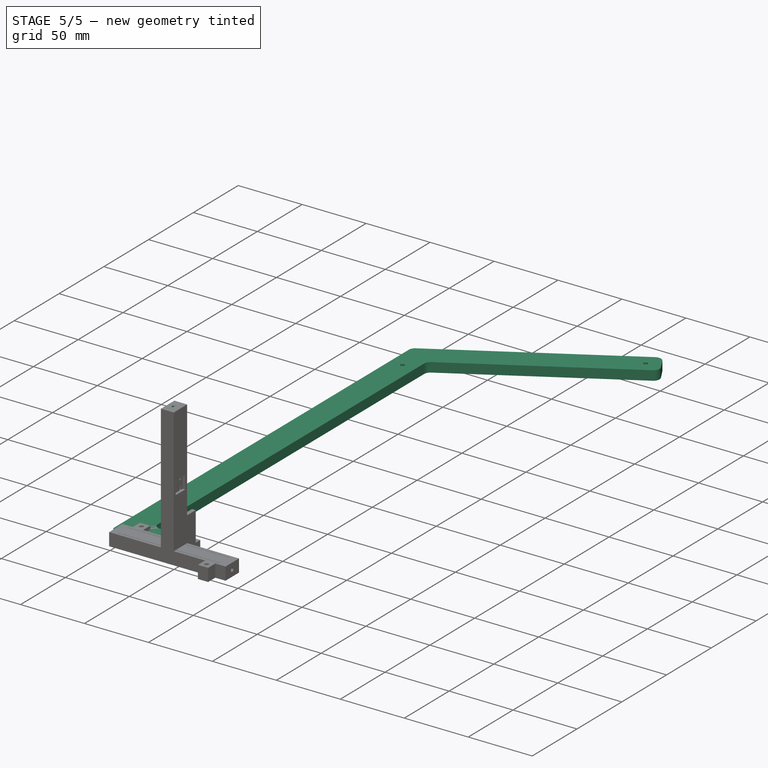
[diagram: stage 5 of 5 — iso view after this stage's code; geometry added in this stage tinted green]
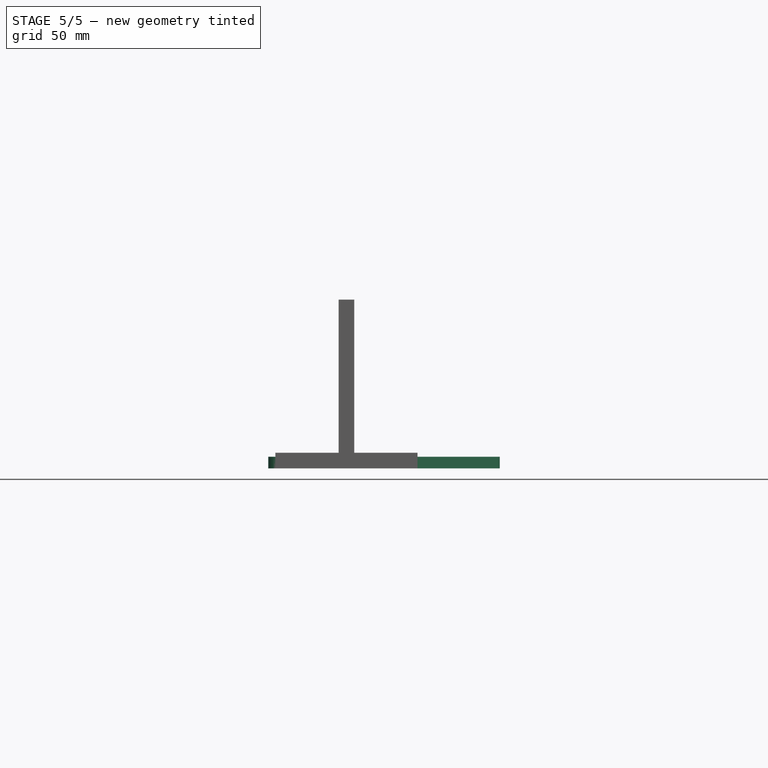
[diagram: stage 5 of 5 — front view after this stage's code; geometry added in this stage tinted green]
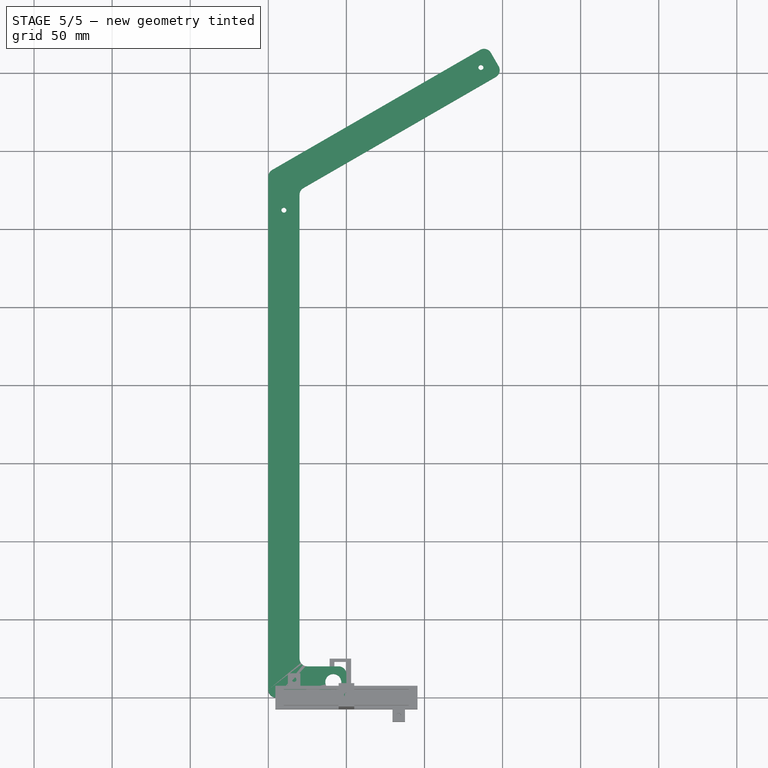
[diagram: stage 5 of 5 — top view after this stage's code; geometry added in this stage tinted green]
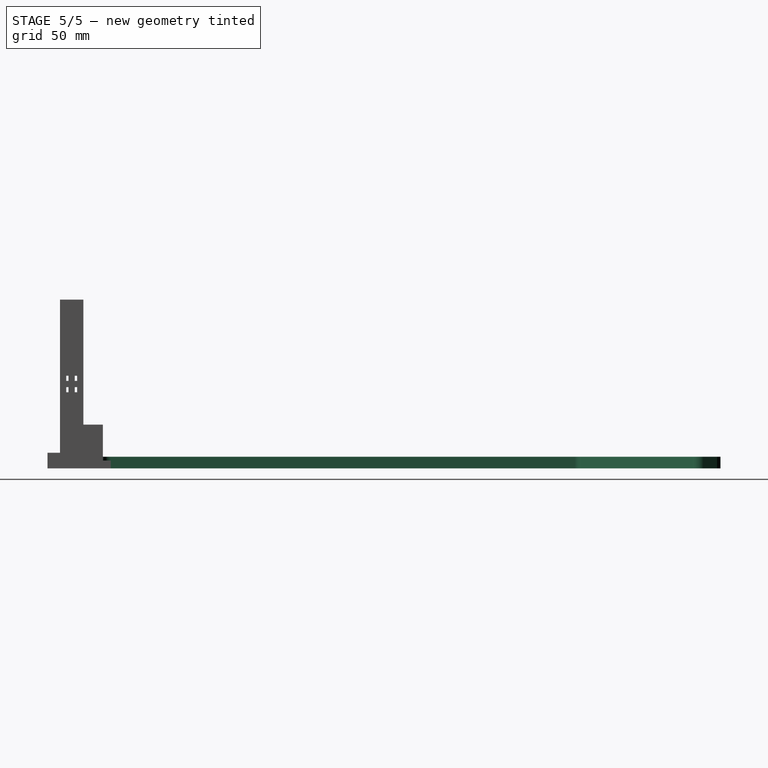
[diagram: stage 5 of 5 — right view after this stage's code; geometry added in this stage tinted green]
FEATURE [Sketcher::SketchObject] Sketch
  FullyConstrained = true
  MapMode = 5
  Support = -> [XY_Plane001]
  sketch-geometry (10):
    g0: LineSegment StartX=90 StartY=417.321 StartZ=0 EndX=100 EndY=400 EndZ=0
    g1: LineSegment StartX=100 StartY=400 StartZ=0 EndX=-30 EndY=324.944 EndZ=0
    g2: LineSegment StartX=-30 StartY=324.944 StartZ=0 EndX=-30 EndY=20 EndZ=0
    g3: LineSegment StartX=-30 StartY=20 StartZ=0 EndX=0 EndY=20 EndZ=0
    g4: LineSegment StartX=0 StartY=20 StartZ=0 EndX=0 EndY=0 EndZ=0
    g5: LineSegment StartX=0 StartY=0 StartZ=0 EndX=-50 EndY=0 EndZ=0
    g6: LineSegment StartX=-50 StartY=0 StartZ=0 EndX=-50 EndY=336.491 EndZ=0
    g7: LineSegment StartX=-50 StartY=336.491 StartZ=0 EndX=90 EndY=417.321 EndZ=0
    g8: LineSegment StartX=100 StartY=400 StartZ=0 EndX=100 EndY=0 EndZ=0
    g9: LineSegment StartX=100 StartY=0 StartZ=0 EndX=0 EndY=0 EndZ=0
  constraints (28):
    c: Coincident(g0,g1)
    c: Coincident(g1,g2)
    c: Vertical(g2)
    c: Coincident(g2,g3)
    c: Horizontal(g3)
    c: Coincident(g3,g4)
    c: Vertical(g4)
    c: Coincident(g4,g5)
    c: Horizontal(g5)
    c: Coincident(g5,g6)
    c: Coincident(g6,g7)
    c: Coincident(g7,g0)
    c: Angle(g2,g1) = 2.0944
    c: Parallel(g1,g7)
    c: Angle(g0,g1) = 1.5708
    c: DistanceX(g5,g5) = 50
    c: Coincident(g4,g-1)
    c: Vertical(g8)
    c: Coincident(g9,g4)
    c: Horizontal(g9)
    c: DistanceX(g9,g9) = 100
    c: Coincident(g9,g8)
    c: Coincident(g8,g0)
    c: DistanceY(g8,g8) = 400
    c: Vertical(g6)
    c: Distance(g0,g0) = 20
    c: DistanceY(g4,g4) = 20
    c: DistanceX(g3,g3) = 30
FEATURE [PartDesign::Pad] Pad
  Direction = (0,0,1)
  Length = 7.4
  Length2 = 10
  Profile = -> Sketch
  ReferenceAxis = -> Sketch [N_Axis]
  Type = 0
FEATURE [PartDesign::Fillet] Fillet
  Base = -> Pad [Edge14,Edge11,Edge17,Edge5,Edge2,Edge8,Edge1,Edge20]
  BaseFeature = -> Pad
  Radius = 5
  SupportTransform = false
  UseAllEdges = false
FEATURE [Sketcher::SketchObject] Sketch001
  ExternalGeometry = -> [Fillet]
  FullyConstrained = false
  MapMode = 5
  Placement = pos=(0,0,7.4) rot=(0,0,1;0rad)
  Support = -> [Fillet]
  sketch-geometry (8):
    g0: LineSegment StartX=95 StartY=408.66 StartZ=0 EndX=86.1294 EndY=403.539 EndZ=0
    g1: LineSegment StartX=86.1294 StartY=403.539 StartZ=0 EndX=81.1294 EndY=412.199 EndZ=0
    g2: Circle CenterX=86.1294 CenterY=403.539 CenterZ=0 NormalX=0 NormalY=0 NormalZ=1 AngleXU=0 Radius=1.6
    g3: LineSegment StartX=-50 StartY=312.18 StartZ=0 EndX=-40 EndY=312.18 EndZ=0
    g4: Circle CenterX=-40 CenterY=312.18 CenterZ=0 NormalX=0 NormalY=0 NormalZ=1 AngleXU=0 Radius=1.6
    g5: LineSegment StartX=0 StartY=10 StartZ=0 EndX=-8.3993 EndY=10 EndZ=0
    g6: LineSegment StartX=-8.3993 StartY=10 StartZ=0 EndX=-8.3993 EndY=20 EndZ=0
    g7: Circle CenterX=-8.3993 CenterY=10 CenterZ=0 NormalX=0 NormalY=0 NormalZ=1 AngleXU=0 Radius=5.1
  constraints (21):
    c: PointOnObject(g0,g-4)
    c: Coincident(g1,g0)
    c: PointOnObject(g1,g-3)
    c: Perpendicular(g-3,g1)
    c: Perpendicular(g-4,g0)
    c: Distance(g1,g0) = 10
    c: Coincident(g2,g0)
    c: Diameter(g2) = 3.2
    c: PointOnObject(g3,g-5)
    c: Horizontal(g3)
    c: DistanceX(g3,g3) = 10
    c: Coincident(g4,g3)
    c: Diameter(g4) = 3.2
    c: PointOnObject(g5,g-7)
    c: Coincident(g6,g5)
    c: PointOnObject(g6,g-6)
    c: Vertical(g6)
    c: Horizontal(g5)
    c: DistanceY(g6,g6) = 10
    c: Coincident(g7,g5)
    c: Diameter(g7) = 10.2
FEATURE [PartDesign::Pocket] Pocket
  BaseFeature = -> Fillet
  Direction = (0,0,-1)
  Length = 0
  Length2 = 5
  Profile = -> Sketch001
  ReferenceAxis = -> Sketch001 [N_Axis]
  Type = 1
FEATURE [Sketcher::SketchObject] Sketch006
  FullyConstrained = true
  MapMode = 5
  Placement = pos=(0,0,108) rot=(0,0,1;0rad)
  Support = -> [Pocket002]
  sketch-geometry (1):
    g0: Circle CenterX=0 CenterY=0 CenterZ=0 NormalX=0 NormalY=0 NormalZ=1 AngleXU=0 Radius=1.5
  constraints (2):
    c: Coincident(g0,g-1)
    c: Diameter(g0) = 3
FEATURE [PartDesign::Pocket] Pocket003
  BaseFeature = -> Pocket002
  Direction = (0,0,-1)
  Length = 5
  Length2 = 5
  Profile = -> Sketch006
  ReferenceAxis = -> Sketch006 [N_Axis]
  Type = 0
FEATURE [Sketcher::SketchObject] Sketch007
  FullyConstrained = true
  MapMode = 5
  Placement = pos=(0,0,0) rot=(1,0,0;3.14159rad)
  Support = -> [Pocket003]
  sketch-geometry (1):
    g0: Circle CenterX=0 CenterY=0 CenterZ=0 NormalX=0 NormalY=0 NormalZ=1 AngleXU=0 Radius=1.5
  constraints (2):
    c: Coincident(g0,g-1)
    c: Diameter(g0) = 3
FEATURE [PartDesign::Pocket] Pocket004
  BaseFeature = -> Pocket003
  Direction = (0,0,1)
  Length = 5
  Length2 = 5
  Profile = -> Sketch007
  ReferenceAxis = -> Sketch007 [N_Axis]
  Type = 0
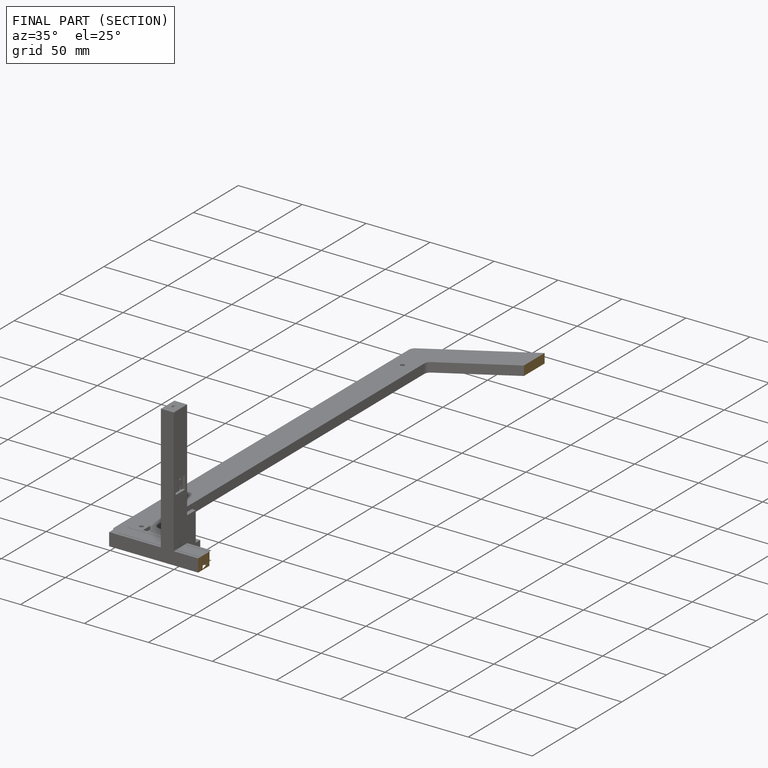
[diagram: finished part — half-section view (interior)]
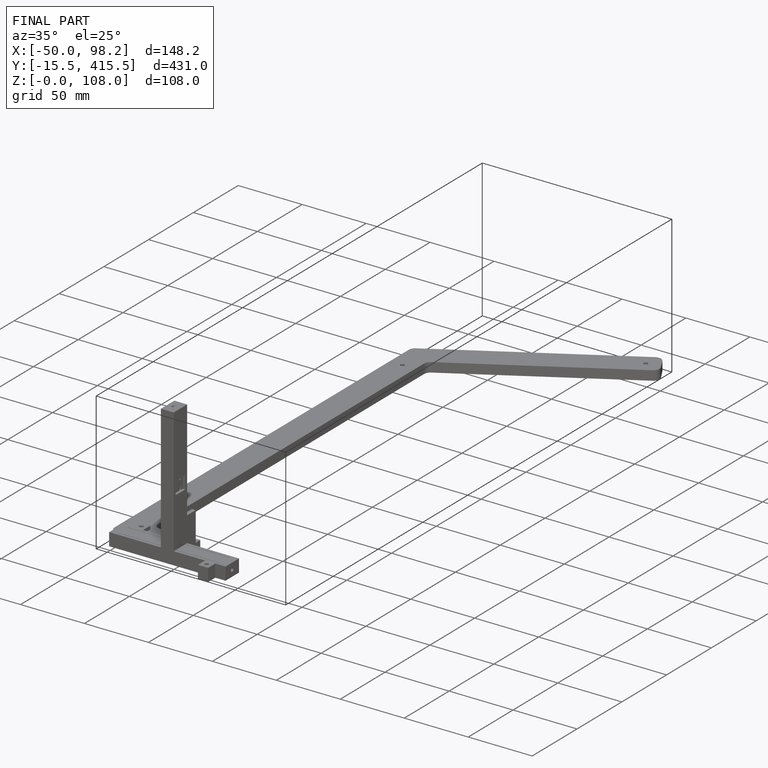
[diagram: finished part — iso view with bounding-box wireframe]
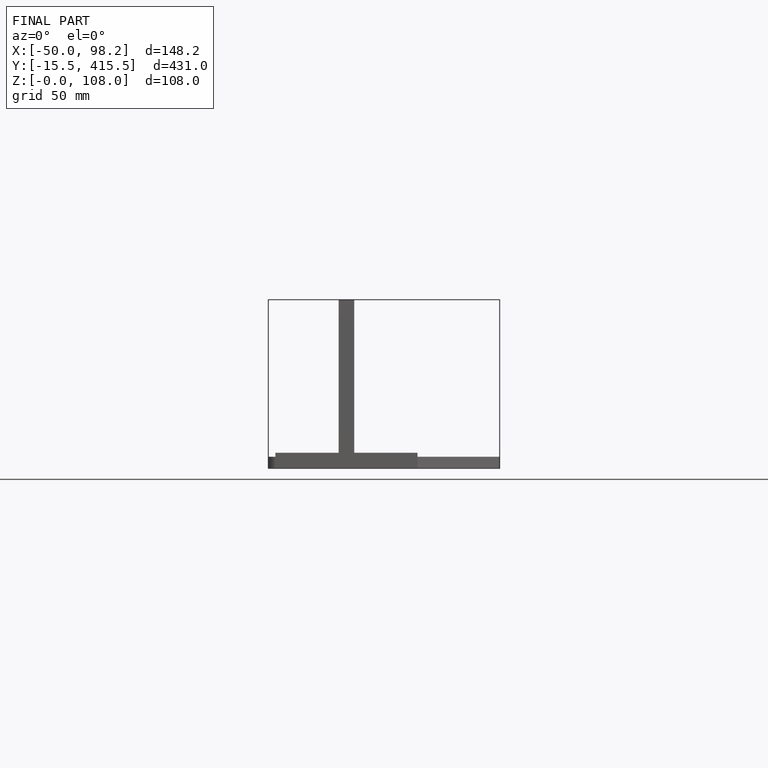
[diagram: finished part — front view with bounding-box wireframe]
